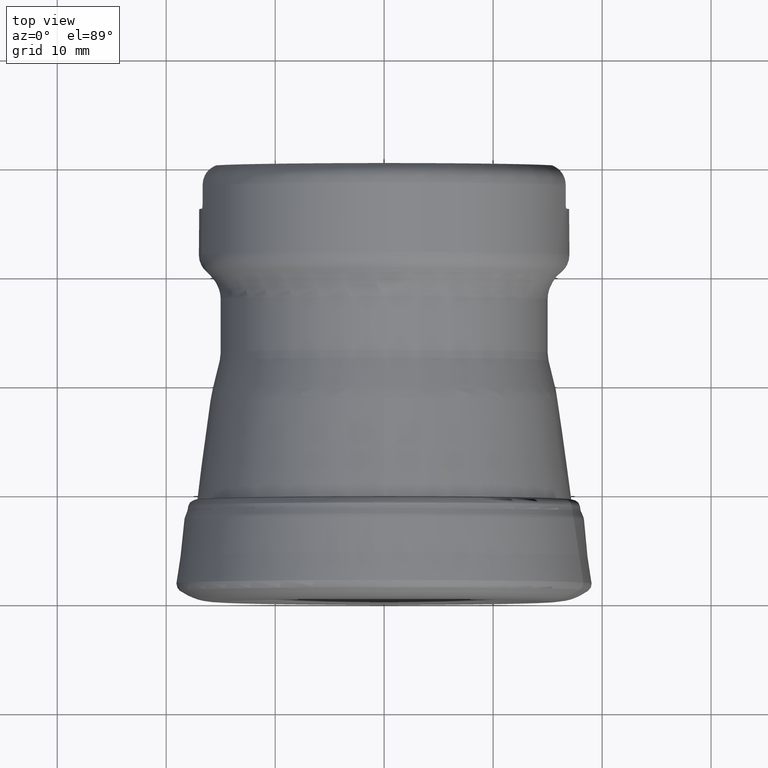
[diagram: clean part render]
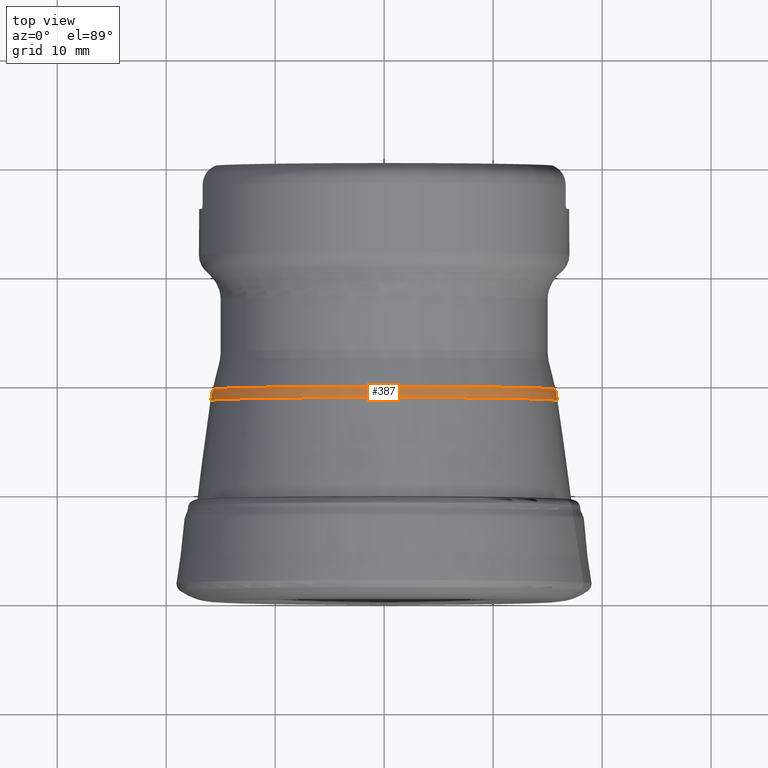
[diagram: same view with one face highlighted and labeled with its STEP entity id]
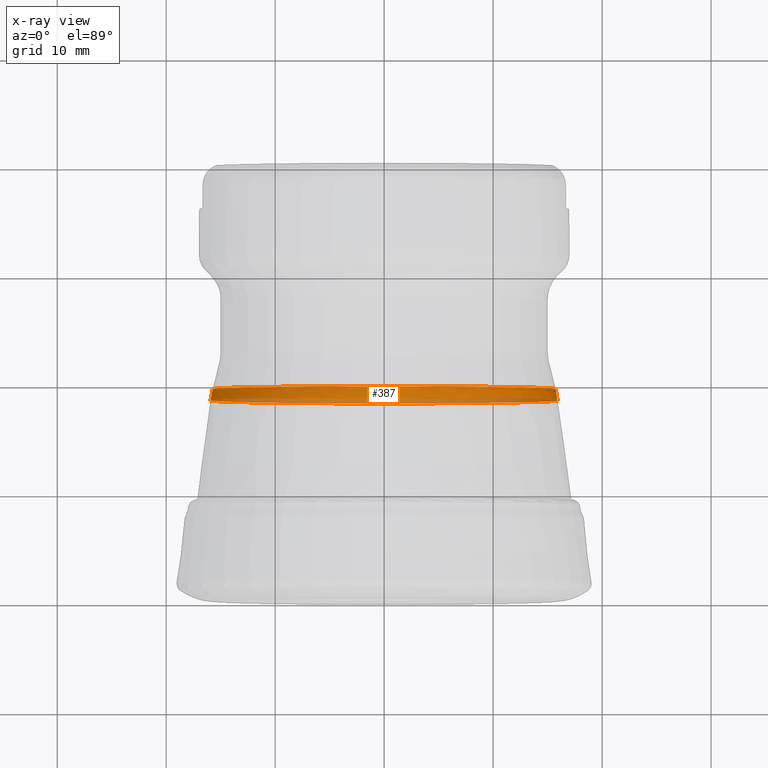
[diagram: x-ray of the same camera — body ghosted, the highlighted face saturated]
A machine part, top view. The second image highlights one B-rep face of the part: STEP entity #387.
The next image is the same camera in x-ray: the body ghosted, the highlighted face saturated — about 30% of this face is hidden behind the body in this view.
In plain terms, the highlighted face is a freeform B-spline surface patch.
Its self-contained STEP definition (entity closure, byte-faithful):
#182=(
BOUNDED_SURFACE()
B_SPLINE_SURFACE(3,3,((#2011,#2012,#2013,#2014,#2015,#2016,#2017),(#2018,
#2019,#2020,#2021,#2022,#2023,#2024),(#2025,#2026,#2027,#2028,#2029,#2030,
#2031),(#2032,#2033,#2034,#2035,#2036,#2037,#2038)),.UNSPECIFIED.,.F.,.T.,
 .F.)
B_SPLINE_SURFACE_WITH_KNOTS((4,4),(1,3,3,3,1),(0.,1.),(-0.5,0.,0.5,1.,1.5),
 .UNSPECIFIED.)
GEOMETRIC_REPRESENTATION_ITEM()
RATIONAL_B_SPLINE_SURFACE(((1.,0.333333333333333,0.333333333333333,1.,0.333333333333333,
0.333333333333333,1.),(0.999080994827317,0.333026998275772,0.333026998275772,
0.999080994827317,0.333026998275772,0.333026998275772,0.999080994827317),
(0.999080994827317,0.333026998275772,0.333026998275772,0.999080994827317,
0.333026998275772,0.333026998275772,0.999080994827317),(1.,0.333333333333333,
0.333333333333333,1.,0.333333333333333,0.333333333333333,1.)))
REPRESENTATION_ITEM('')
SURFACE()
);
#387=ADVANCED_FACE('',(#485,#486),#182,.T.);
#485=FACE_BOUND('',#619,.T.);
#486=FACE_BOUND('',#620,.T.);
#619=EDGE_LOOP('',(#833));
#620=EDGE_LOOP('',(#834));
#833=ORIENTED_EDGE('',*,*,#1057,.F.);
#834=ORIENTED_EDGE('',*,*,#1073,.F.);
#956=VERTEX_POINT('',#1681);
#972=VERTEX_POINT('',#1776);
#1057=EDGE_CURVE('',#956,#956,#1178,.T.);
#1073=EDGE_CURVE('',#972,#972,#1186,.T.);
#1178=CIRCLE('',#1251,15.9321558090371);
#1186=CIRCLE('',#1262,15.7352877047571);
#1251=AXIS2_PLACEMENT_3D('',#1680,#1373,#1374);
#1262=AXIS2_PLACEMENT_3D('',#1775,#1399,#1400);
#1373=DIRECTION('',(1.16234042869424E-17,-1.,0.));
#1374=DIRECTION('',(-1.,0.,0.));
#1399=DIRECTION('',(-1.16234042869424E-17,1.,0.));
#1400=DIRECTION('',(-1.,0.,0.));
#1680=CARTESIAN_POINT('',(-1.52388774127535E-15,18.4842466051858,0.));
#1681=CARTESIAN_POINT('',(-15.9321558090371,18.4842466051858,0.));
#1775=CARTESIAN_POINT('',(-1.53587332011824E-15,19.5154056827682,0.));
#1776=CARTESIAN_POINT('',(-15.7352877047571,19.5154056827682,0.));
#2011=CARTESIAN_POINT('',(15.9321558090371,18.4842466051858,0.));
#2012=CARTESIAN_POINT('',(15.9321558090371,18.4842466051858,31.8643116180742));
#2013=CARTESIAN_POINT('',(-15.9321558090371,18.4842466051858,31.8643116180742));
#2014=CARTESIAN_POINT('',(-15.9321558090371,18.4842466051858,0.));
#2015=CARTESIAN_POINT('',(-15.9321558090371,18.4842466051858,-31.8643116180742));
#2016=CARTESIAN_POINT('',(15.9321558090371,18.4842466051858,-31.8643116180742));
#2017=CARTESIAN_POINT('',(15.9321558090371,18.4842466051858,0.));
#2018=CARTESIAN_POINT('',(15.8846214534913,18.8312558633016,0.));
#2019=CARTESIAN_POINT('',(15.8846214534913,18.8312558633016,31.7692429069826));
#2020=CARTESIAN_POINT('',(-15.8846214534913,18.8312558633016,31.7692429069826));
#2021=CARTESIAN_POINT('',(-15.8846214534913,18.8312558633016,0.));
#2022=CARTESIAN_POINT('',(-15.8846214534913,18.8312558633016,-31.7692429069826));
#2023=CARTESIAN_POINT('',(15.8846214534913,18.8312558633016,-31.7692429069826));
#2024=CARTESIAN_POINT('',(15.8846214534913,18.8312558633016,0.));
#2025=CARTESIAN_POINT('',(15.8189383889886,19.175291726567,0.));
#2026=CARTESIAN_POINT('',(15.8189383889886,19.175291726567,31.6378767779772));
#2027=CARTESIAN_POINT('',(-15.8189383889886,19.175291726567,31.6378767779772));
#2028=CARTESIAN_POINT('',(-15.8189383889886,19.175291726567,0.));
#2029=CARTESIAN_POINT('',(-15.8189383889886,19.175291726567,-31.6378767779772));
#2030=CARTESIAN_POINT('',(15.8189383889886,19.175291726567,-31.6378767779772));
#2031=CARTESIAN_POINT('',(15.8189383889886,19.175291726567,0.));
#2032=CARTESIAN_POINT('',(15.7352877047571,19.5154056827682,0.));
#2033=CARTESIAN_POINT('',(15.7352877047571,19.5154056827682,31.4705754095142));
#2034=CARTESIAN_POINT('',(-15.7352877047571,19.5154056827682,31.4705754095142));
#2035=CARTESIAN_POINT('',(-15.7352877047571,19.5154056827682,0.));
#2036=CARTESIAN_POINT('',(-15.7352877047571,19.5154056827682,-31.4705754095142));
#2037=CARTESIAN_POINT('',(15.7352877047571,19.5154056827682,-31.4705754095142));
#2038=CARTESIAN_POINT('',(15.7352877047571,19.5154056827682,0.));